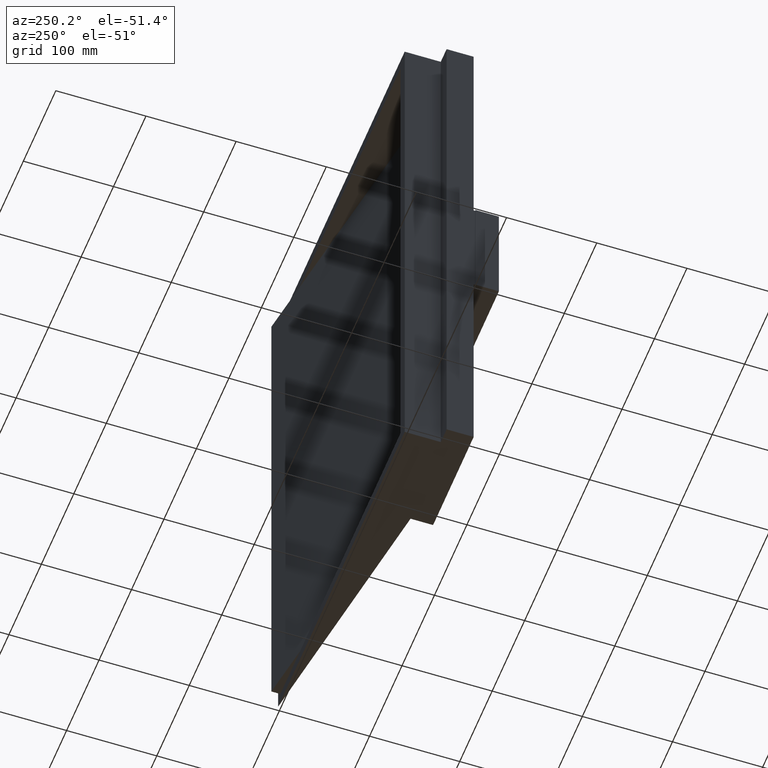
[diagram: clean part render]
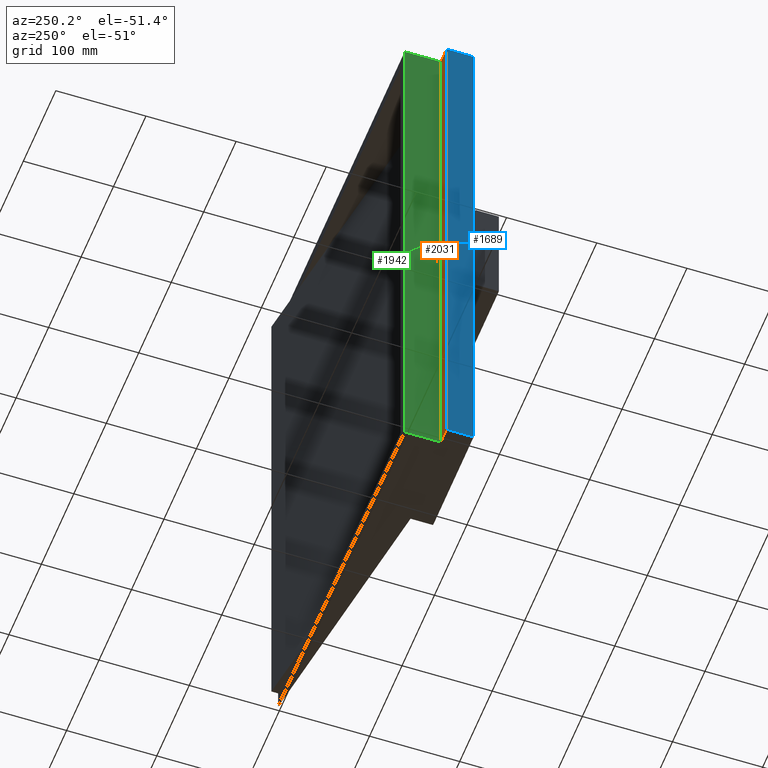
[diagram: same view with three faces highlighted in distinct colors, each labeled with its STEP entity id]
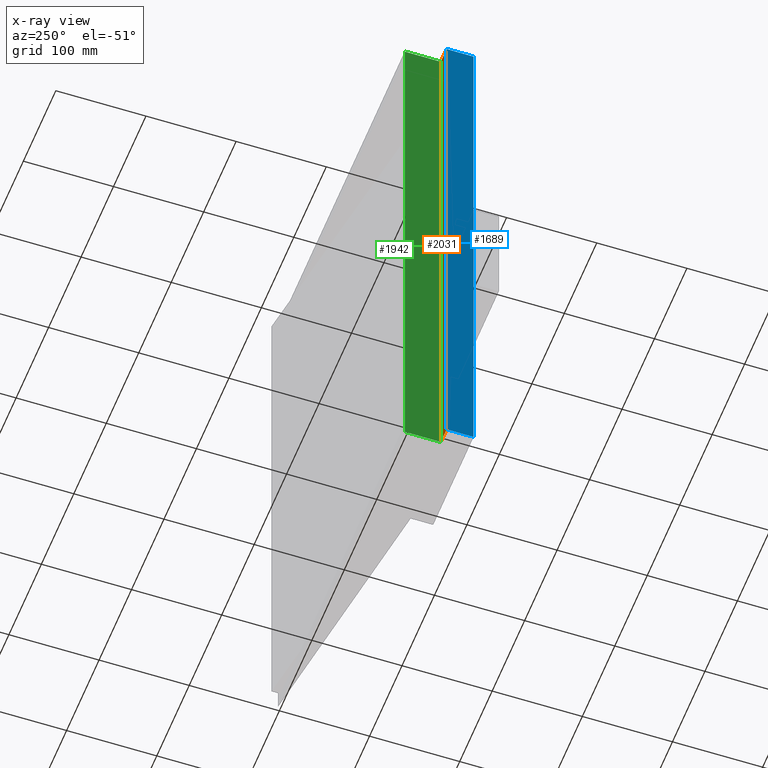
[diagram: x-ray of the same camera — body ghosted, the three highlighted faces saturated]
A machine part, auxiliary view with three faces highlighted in distinct colors.
The next image is the same camera in x-ray (body ghosted, the three faces saturated) — at least one of them is partly hidden behind the body in this view.
Their STEP definitions:

[orange] entity #2031 — the highlighted planar face has unit normal (0, -1, 0).
#248 = EDGE_CURVE ( 'NONE', #2057, #2836, #2489, .T. ) ;
#267 = ORIENTED_EDGE ( 'NONE', *, *, #248, .F. ) ;
#320 = LINE ( 'NONE', #2852, #2720 ) ;
#449 = VERTEX_POINT ( 'NONE', #2751 ) ;
#542 = FACE_OUTER_BOUND ( 'NONE', #896, .T. ) ;
#580 = LINE ( 'NONE', #1122, #940 ) ;
#650 = ORIENTED_EDGE ( 'NONE', *, *, #1621, .T. ) ;
#804 = LINE ( 'NONE', #1224, #2155 ) ;
#863 = CARTESIAN_POINT ( 'NONE',  ( -104.1163824607965700, -40.00000000000003600, 318.0000000000000000 ) ) ;
#896 = EDGE_LOOP ( 'NONE', ( #650, #2593, #267, #1047 ) ) ;
#898 = CARTESIAN_POINT ( 'NONE',  ( -104.1163824607965700, -40.00000000000003600, 318.0000000000000000 ) ) ;
#940 = VECTOR ( 'NONE', #1133, 1000.000000000000000 ) ;
#1047 = ORIENTED_EDGE ( 'NONE', *, *, #1558, .T. ) ;
#1122 = CARTESIAN_POINT ( 'NONE',  ( -86.11638246079657200, -40.00000000000003600, 318.0000000000000000 ) ) ;
#1133 = DIRECTION ( 'NONE',  ( -0.0000000000000000000, -0.0000000000000000000, -1.000000000000000000 ) ) ;
#1208 = AXIS2_PLACEMENT_3D ( 'NONE', #2023, #2044, #2047 ) ;
#1224 = CARTESIAN_POINT ( 'NONE',  ( -104.1163824607965700, -40.00000000000003600, -318.0000000000000000 ) ) ;
#1259 = DIRECTION ( 'NONE',  ( -1.000000000000000000, -0.0000000000000000000, -0.0000000000000000000 ) ) ;
#1558 = EDGE_CURVE ( 'NONE', #2057, #449, #580, .T. ) ;
#1621 = EDGE_CURVE ( 'NONE', #449, #2516, #804, .T. ) ;
#2023 = CARTESIAN_POINT ( 'NONE',  ( -104.1163824607965700, -40.00000000000003600, 318.0000000000000000 ) ) ;
#2031 = ADVANCED_FACE ( 'NONE', ( #542 ), #2039, .F. ) ;
#2039 = PLANE ( 'NONE',  #1208 ) ;
#2044 = DIRECTION ( 'NONE',  ( 0.0000000000000000000, -1.000000000000000000, 0.0000000000000000000 ) ) ;
#2047 = DIRECTION ( 'NONE',  ( 0.0000000000000000000, -0.0000000000000000000, -1.000000000000000000 ) ) ;
#2057 = VERTEX_POINT ( 'NONE', #2061 ) ;
#2061 = CARTESIAN_POINT ( 'NONE',  ( -86.11638246079657200, -40.00000000000003600, 318.0000000000000000 ) ) ;
#2155 = VECTOR ( 'NONE', #1259, 1000.000000000000000 ) ;
#2430 = VECTOR ( 'NONE', #2640, 1000.000000000000000 ) ;
#2489 = LINE ( 'NONE', #863, #2430 ) ;
#2516 = VERTEX_POINT ( 'NONE', #2554 ) ;
#2554 = CARTESIAN_POINT ( 'NONE',  ( -104.1163824607965700, -40.00000000000003600, -318.0000000000000000 ) ) ;
#2593 = ORIENTED_EDGE ( 'NONE', *, *, #2685, .F. ) ;
#2640 = DIRECTION ( 'NONE',  ( -1.000000000000000000, -0.0000000000000000000, -0.0000000000000000000 ) ) ;
#2685 = EDGE_CURVE ( 'NONE', #2836, #2516, #320, .T. ) ;
#2720 = VECTOR ( 'NONE', #2925, 1000.000000000000000 ) ;
#2751 = CARTESIAN_POINT ( 'NONE',  ( -86.11638246079657200, -40.00000000000003600, -318.0000000000000000 ) ) ;
#2836 = VERTEX_POINT ( 'NONE', #898 ) ;
#2852 = CARTESIAN_POINT ( 'NONE',  ( -104.1163824607965700, -40.00000000000003600, 318.0000000000000000 ) ) ;
#2925 = DIRECTION ( 'NONE',  ( -0.0000000000000000000, -0.0000000000000000000, -1.000000000000000000 ) ) ;

[blue] entity #1689 — the highlighted planar face has unit normal (1, 0, -0).
#55 = LINE ( 'NONE', #2606, #93 ) ;
#66 = FACE_OUTER_BOUND ( 'NONE', #600, .T. ) ;
#93 = VECTOR ( 'NONE', #2626, 1000.000000000000000 ) ;
#320 = LINE ( 'NONE', #2852, #2720 ) ;
#469 = DIRECTION ( 'NONE',  ( 4.625929269271485900E-016, -1.000000000000000000, -0.0000000000000000000 ) ) ;
#600 = EDGE_LOOP ( 'NONE', ( #1828, #993, #2476, #1056 ) ) ;
#802 = AXIS2_PLACEMENT_3D ( 'NONE', #1307, #1364, #1368 ) ;
#803 = CARTESIAN_POINT ( 'NONE',  ( -104.1163824607965600, -70.00000000000002800, -318.0000000000000000 ) ) ;
#898 = CARTESIAN_POINT ( 'NONE',  ( -104.1163824607965700, -40.00000000000003600, 318.0000000000000000 ) ) ;
#993 = ORIENTED_EDGE ( 'NONE', *, *, #2627, .F. ) ;
#1056 = ORIENTED_EDGE ( 'NONE', *, *, #2685, .T. ) ;
#1258 = VECTOR ( 'NONE', #469, 1000.000000000000000 ) ;
#1303 = PLANE ( 'NONE',  #802 ) ;
#1307 = CARTESIAN_POINT ( 'NONE',  ( -104.1163824607965600, -70.00000000000002800, 318.0000000000000000 ) ) ;
#1345 = LINE ( 'NONE', #803, #1258 ) ;
#1364 = DIRECTION ( 'NONE',  ( 1.000000000000000000, 4.625929269271486900E-016, -0.0000000000000000000 ) ) ;
#1368 = DIRECTION ( 'NONE',  ( -4.625929269271486900E-016, 1.000000000000000000, 0.0000000000000000000 ) ) ;
#1689 = ADVANCED_FACE ( 'NONE', ( #66 ), #1303, .F. ) ;
#1828 = ORIENTED_EDGE ( 'NONE', *, *, #2304, .T. ) ;
#1850 = LINE ( 'NONE', #2769, #2118 ) ;
#2118 = VECTOR ( 'NONE', #2790, 1000.000000000000000 ) ;
#2304 = EDGE_CURVE ( 'NONE', #2516, #2661, #1345, .T. ) ;
#2476 = ORIENTED_EDGE ( 'NONE', *, *, #2559, .F. ) ;
#2516 = VERTEX_POINT ( 'NONE', #2554 ) ;
#2554 = CARTESIAN_POINT ( 'NONE',  ( -104.1163824607965700, -40.00000000000003600, -318.0000000000000000 ) ) ;
#2559 = EDGE_CURVE ( 'NONE', #2836, #2766, #55, .T. ) ;
#2606 = CARTESIAN_POINT ( 'NONE',  ( -104.1163824607965600, -70.00000000000002800, 318.0000000000000000 ) ) ;
#2626 = DIRECTION ( 'NONE',  ( 4.625929269271485900E-016, -1.000000000000000000, -0.0000000000000000000 ) ) ;
#2627 = EDGE_CURVE ( 'NONE', #2766, #2661, #1850, .T. ) ;
#2661 = VERTEX_POINT ( 'NONE', #2845 ) ;
#2685 = EDGE_CURVE ( 'NONE', #2836, #2516, #320, .T. ) ;
#2720 = VECTOR ( 'NONE', #2925, 1000.000000000000000 ) ;
#2766 = VERTEX_POINT ( 'NONE', #2935 ) ;
#2769 = CARTESIAN_POINT ( 'NONE',  ( -104.1163824607965600, -70.00000000000002800, 318.0000000000000000 ) ) ;
#2790 = DIRECTION ( 'NONE',  ( -0.0000000000000000000, -0.0000000000000000000, -1.000000000000000000 ) ) ;
#2836 = VERTEX_POINT ( 'NONE', #898 ) ;
#2845 = CARTESIAN_POINT ( 'NONE',  ( -104.1163824607965600, -70.00000000000002800, -318.0000000000000000 ) ) ;
#2852 = CARTESIAN_POINT ( 'NONE',  ( -104.1163824607965700, -40.00000000000003600, 318.0000000000000000 ) ) ;
#2925 = DIRECTION ( 'NONE',  ( -0.0000000000000000000, -0.0000000000000000000, -1.000000000000000000 ) ) ;
#2935 = CARTESIAN_POINT ( 'NONE',  ( -104.1163824607965600, -70.00000000000002800, 318.0000000000000000 ) ) ;

[green] entity #1942 — the highlighted planar face has unit normal (1, -0, 0).
#13 = ORIENTED_EDGE ( 'NONE', *, *, #1558, .F. ) ;
#122 = VECTOR ( 'NONE', #1845, 1000.000000000000000 ) ;
#134 = VECTOR ( 'NONE', #2176, 1000.000000000000000 ) ;
#225 = LINE ( 'NONE', #2024, #122 ) ;
#331 = VERTEX_POINT ( 'NONE', #1990 ) ;
#338 = ORIENTED_EDGE ( 'NONE', *, *, #2914, .T. ) ;
#449 = VERTEX_POINT ( 'NONE', #2751 ) ;
#510 = ORIENTED_EDGE ( 'NONE', *, *, #651, .T. ) ;
#514 = ORIENTED_EDGE ( 'NONE', *, *, #2449, .F. ) ;
#573 = VECTOR ( 'NONE', #2435, 1000.000000000000000 ) ;
#580 = LINE ( 'NONE', #1122, #940 ) ;
#605 = LINE ( 'NONE', #2419, #573 ) ;
#651 = EDGE_CURVE ( 'NONE', #1101, #449, #225, .T. ) ;
#940 = VECTOR ( 'NONE', #1133, 1000.000000000000000 ) ;
#987 = EDGE_LOOP ( 'NONE', ( #510, #13, #514, #338 ) ) ;
#1005 = AXIS2_PLACEMENT_3D ( 'NONE', #1816, #1732, #1835 ) ;
#1072 = CARTESIAN_POINT ( 'NONE',  ( -86.11638246079655800, 0.0000000000000000000, 318.0000000000000000 ) ) ;
#1101 = VERTEX_POINT ( 'NONE', #2521 ) ;
#1122 = CARTESIAN_POINT ( 'NONE',  ( -86.11638246079657200, -40.00000000000003600, 318.0000000000000000 ) ) ;
#1133 = DIRECTION ( 'NONE',  ( -0.0000000000000000000, -0.0000000000000000000, -1.000000000000000000 ) ) ;
#1558 = EDGE_CURVE ( 'NONE', #2057, #449, #580, .T. ) ;
#1732 = DIRECTION ( 'NONE',  ( 1.000000000000000000, -3.469446951953611700E-016, 0.0000000000000000000 ) ) ;
#1816 = CARTESIAN_POINT ( 'NONE',  ( -86.11638246079657200, -40.00000000000003600, 318.0000000000000000 ) ) ;
#1827 = PLANE ( 'NONE',  #1005 ) ;
#1835 = DIRECTION ( 'NONE',  ( 3.469446951953611700E-016, 1.000000000000000000, 0.0000000000000000000 ) ) ;
#1845 = DIRECTION ( 'NONE',  ( -3.469446951953611200E-016, -1.000000000000000000, -0.0000000000000000000 ) ) ;
#1895 = LINE ( 'NONE', #1072, #134 ) ;
#1942 = ADVANCED_FACE ( 'NONE', ( #2392 ), #1827, .F. ) ;
#1990 = CARTESIAN_POINT ( 'NONE',  ( -86.11638246079655800, 0.0000000000000000000, 318.0000000000000000 ) ) ;
#2024 = CARTESIAN_POINT ( 'NONE',  ( -86.11638246079657200, -40.00000000000003600, -318.0000000000000000 ) ) ;
#2057 = VERTEX_POINT ( 'NONE', #2061 ) ;
#2061 = CARTESIAN_POINT ( 'NONE',  ( -86.11638246079657200, -40.00000000000003600, 318.0000000000000000 ) ) ;
#2176 = DIRECTION ( 'NONE',  ( -0.0000000000000000000, -0.0000000000000000000, -1.000000000000000000 ) ) ;
#2392 = FACE_OUTER_BOUND ( 'NONE', #987, .T. ) ;
#2419 = CARTESIAN_POINT ( 'NONE',  ( -86.11638246079657200, -40.00000000000003600, 318.0000000000000000 ) ) ;
#2435 = DIRECTION ( 'NONE',  ( -3.469446951953611200E-016, -1.000000000000000000, -0.0000000000000000000 ) ) ;
#2449 = EDGE_CURVE ( 'NONE', #331, #2057, #605, .T. ) ;
#2521 = CARTESIAN_POINT ( 'NONE',  ( -86.11638246079655800, 0.0000000000000000000, -318.0000000000000000 ) ) ;
#2751 = CARTESIAN_POINT ( 'NONE',  ( -86.11638246079657200, -40.00000000000003600, -318.0000000000000000 ) ) ;
#2914 = EDGE_CURVE ( 'NONE', #331, #1101, #1895, .T. ) ;